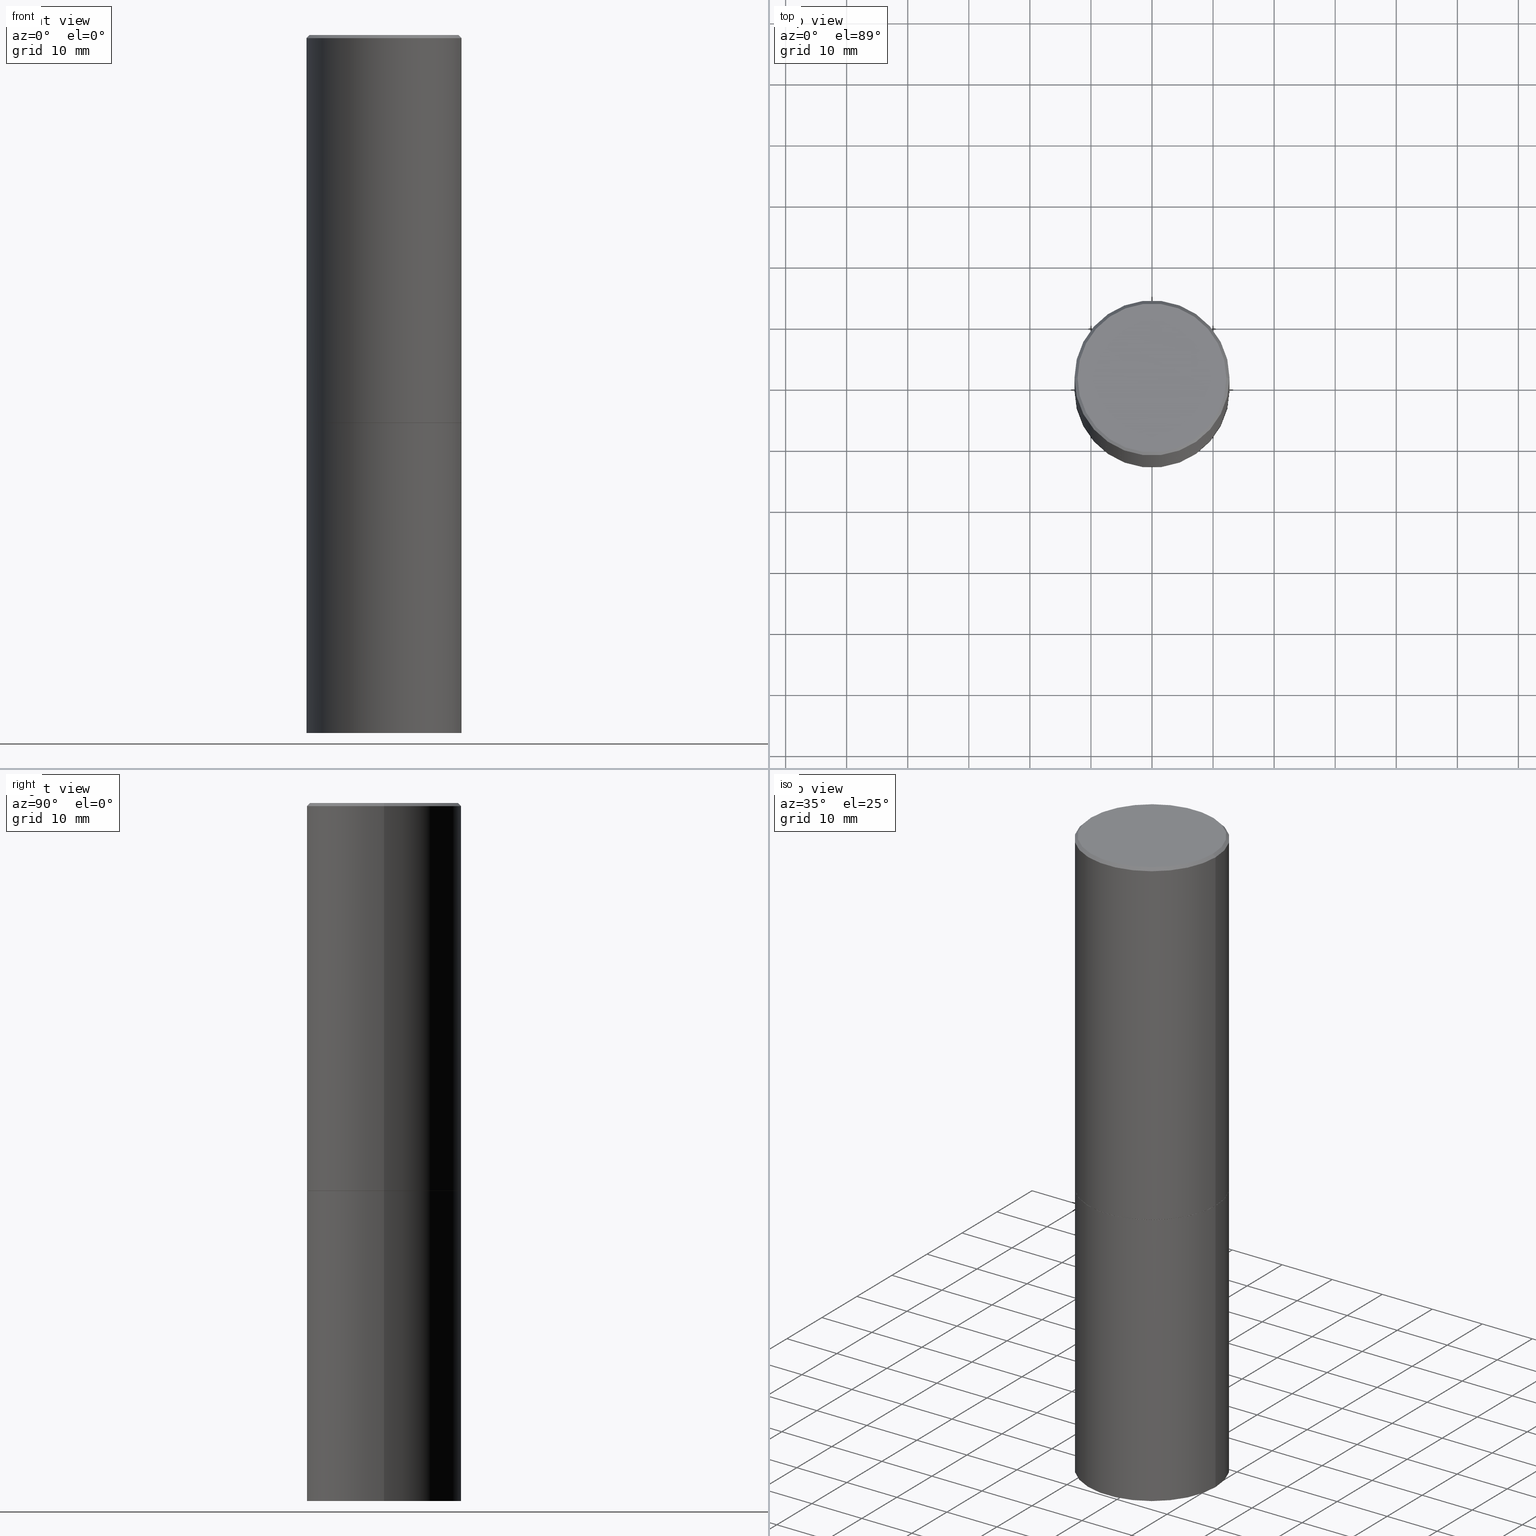
[diagram: canonical four-view strip — front | top / right | iso, engineering-drawing reading convention]
A machine part, canonical four-view strip (front | top / right | iso — engineering-drawing reading convention). The complete STEP part file that produces these views, byte-faithful:
ISO-10303-21;
HEADER;
FILE_DESCRIPTION (( 'STEP AP203' ),
    '1' );
FILE_NAME ('37302.STEP',
    '2024-02-27T21:13:08',
    ( '' ),
    ( '' ),
    'SwSTEP 2.0',
    'SolidWorks 2023',
    '' );
FILE_SCHEMA (( 'CONFIG_CONTROL_DESIGN' ));
ENDSEC;

DATA;
#1 = APPROVAL_STATUS ( 'not_yet_approved' ) ;
#2 = LINE ( 'NONE', #251, #241 ) ;
#3 = EDGE_CURVE ( 'NONE', #66, #364, #263, .T. ) ;
#4 = PERSON_AND_ORGANIZATION ( #172, #94 ) ;
#5 = PLANE ( 'NONE',  #203 ) ;
#6 = ORIENTED_EDGE ( 'NONE', *, *, #247, .T. ) ;
#7 = CARTESIAN_POINT ( 'NONE',  ( 3.351822085289404787E-15, 0.4799999999999995937, -1.669508273909557867E-15 ) ) ;
#8 = VECTOR ( 'NONE', #308, 39.37007874015748143 ) ;
#9 = ORIENTED_EDGE ( 'NONE', *, *, #125, .F. ) ;
#10 = ORIENTED_EDGE ( 'NONE', *, *, #343, .F. ) ;
#11 = LOCAL_TIME ( 16, 13, 8.000000000000000000, #177 ) ;
#12 = ORIENTED_EDGE ( 'NONE', *, *, #96, .T. ) ;
#13 = CIRCLE ( 'NONE', #146, 0.4989999999999999991 ) ;
#14 = ORIENTED_EDGE ( 'NONE', *, *, #183, .F. ) ;
#15 = CARTESIAN_POINT ( 'NONE',  ( -3.131554243005659264E-46, 4.471029511141341874E-32, 1.280553747030123384E-17 ) ) ;
#16 = VERTEX_POINT ( 'NONE', #142 ) ;
#17 = DIRECTION ( 'NONE',  ( 1.000000000000000000, -6.982962677686266711E-15, 0.000000000000000000 ) ) ;
#18 = PRODUCT_RELATED_PRODUCT_CATEGORY ( 'detail', '', ( #224 ) ) ;
#19 = CARTESIAN_POINT ( 'NONE',  ( 0.4999999999999996669, -3.500078625662626713E-15, -0.02000000000000009062 ) ) ;
#20 = FACE_OUTER_BOUND ( 'NONE', #144, .T. ) ;
#21 = EDGE_CURVE ( 'NONE', #16, #52, #97, .T. ) ;
#22 = CARTESIAN_POINT ( 'NONE',  ( 0.4989999999999999991, -1.221320172327331228E-14, -2.500000000000000000 ) ) ;
#23 = CC_DESIGN_PERSON_AND_ORGANIZATION_ASSIGNMENT ( #338, #71, ( #274 ) ) ;
#24 = ADVANCED_FACE ( 'NONE', ( #335 ), #307, .T. ) ;
#25 = CIRCLE ( 'NONE', #257, 0.5000000000000000000 ) ;
#26 = CARTESIAN_POINT ( 'NONE',  ( 6.111226546656657010E-29, -8.725211865769021935E-15, -2.499000000000000110 ) ) ;
#27 = DIRECTION ( 'NONE',  ( -2.445468806185136597E-29, 3.491481338843145583E-15, 1.000000000000000000 ) ) ;
#28 = DIRECTION ( 'NONE',  ( 1.000000000000000000, -6.982962677686266711E-15, 0.000000000000000000 ) ) ;
#29 = COORDINATED_UNIVERSAL_TIME_OFFSET ( 5, 0, .BEHIND. ) ;
#30 = DIRECTION ( 'NONE',  ( -2.445468806185136597E-29, 3.491481338843145583E-15, 1.000000000000000000 ) ) ;
#31 = CALENDAR_DATE ( 2024, 27, 2 ) ;
#32 = DIRECTION ( 'NONE',  ( -2.445468806185136597E-29, 3.491481338843145583E-15, 1.000000000000000000 ) ) ;
#33 = CC_DESIGN_PERSON_AND_ORGANIZATION_ASSIGNMENT ( #68, #170, ( #224 ) ) ;
#34 = FACE_OUTER_BOUND ( 'NONE', #332, .T. ) ;
#35 = VERTEX_POINT ( 'NONE', #47 ) ;
#36 = ORIENTED_EDGE ( 'NONE', *, *, #83, .F. ) ;
#37 = ORIENTED_EDGE ( 'NONE', *, *, #114, .T. ) ;
#38 = AXIS2_PLACEMENT_3D ( 'NONE', #75, #315, #152 ) ;
#39 = DIRECTION ( 'NONE',  ( 1.000000000000000000, 0.000000000000000000, 0.000000000000000000 ) ) ;
#40 = COORDINATED_UNIVERSAL_TIME_OFFSET ( 5, 0, .BEHIND. ) ;
#41 = DIRECTION ( 'NONE',  ( 1.000000000000000000, -6.982962677686266711E-15, 0.000000000000000000 ) ) ;
#42 = DIRECTION ( 'NONE',  ( -2.445468806185136597E-29, 3.491481338843145583E-15, 1.000000000000000000 ) ) ;
#43 = CALENDAR_DATE ( 2024, 27, 2 ) ;
#44 = AXIS2_PLACEMENT_3D ( 'NONE', #61, #206, #325 ) ;
#45 = AXIS2_PLACEMENT_3D ( 'NONE', #324, #32, #89 ) ;
#46 = DIRECTION ( 'NONE',  ( -2.438088387897960049E-29, 3.491481338843145188E-15, 1.000000000000000000 ) ) ;
#47 = CARTESIAN_POINT ( 'NONE',  ( -0.4799999999999995937, 3.386736898677836436E-15, 1.280553747027767124E-17 ) ) ;
#48 = EDGE_CURVE ( 'NONE', #238, #52, #148, .T. ) ;
#49 = LINE ( 'NONE', #228, #154 ) ;
#50 = CARTESIAN_POINT ( 'NONE',  ( 0.000000000000000000, 0.000000000000000000, 0.000000000000000000 ) ) ;
#51 = DATE_AND_TIME ( #344, #220 ) ;
#52 = VERTEX_POINT ( 'NONE', #244 ) ;
#53 = DIRECTION ( 'NONE',  ( -2.445468806185136597E-29, 3.491481338843145583E-15, 1.000000000000000000 ) ) ;
#54 = CONICAL_SURFACE ( 'NONE', #121, 0.4989999999999999991, 0.7853981633975507526 ) ;
#55 = FACE_OUTER_BOUND ( 'NONE', #366, .T. ) ;
#56 = APPROVAL_DATE_TIME ( #294, #80 ) ;
#57 = CARTESIAN_POINT ( 'NONE',  ( 4.890937612370295054E-31, -6.982962677686322424E-17, -0.02000000000000009062 ) ) ;
#58 = COORDINATED_UNIVERSAL_TIME_OFFSET ( 5, 0, .BEHIND. ) ;
#59 = VECTOR ( 'NONE', #174, 39.37007874015748143 ) ;
#60 = PLANE ( 'NONE',  #192 ) ;
#61 = CARTESIAN_POINT ( 'NONE',  ( 6.113672015462842613E-29, -8.728703347107864943E-15, -2.500000000000000000 ) ) ;
#62 = CC_DESIGN_PERSON_AND_ORGANIZATION_ASSIGNMENT ( #158, #287, ( #161 ) ) ;
#63 = FACE_OUTER_BOUND ( 'NONE', #123, .T. ) ;
#64 = ORIENTED_EDGE ( 'NONE', *, *, #100, .T. ) ;
#65 = PERSON_AND_ORGANIZATION ( #172, #94 ) ;
#66 = VERTEX_POINT ( 'NONE', #269 ) ;
#67 = CARTESIAN_POINT ( 'NONE',  ( -0.5000000000000000000, -8.448070674724411945E-16, -2.499000000000000110 ) ) ;
#68 = PERSON_AND_ORGANIZATION ( #172, #94 ) ;
#69 = CARTESIAN_POINT ( 'NONE',  ( 1.100460962783311469E-28, -1.571166602479415690E-14, -4.500000000000000000 ) ) ;
#70 = PERSON_AND_ORGANIZATION ( #172, #94 ) ;
#71 = PERSON_AND_ORGANIZATION_ROLE ( 'creator' ) ;
#72 = CARTESIAN_POINT ( 'NONE',  ( 6.113672015462842613E-29, -8.728703347107864943E-15, -2.500000000000000000 ) ) ;
#73 = AXIS2_PLACEMENT_3D ( 'NONE', #345, #53, #188 ) ;
#74 = CLOSED_SHELL ( 'NONE', ( #235, #260, #190, #331, #91, #299, #199, #306 ) ) ;
#75 = CARTESIAN_POINT ( 'NONE',  ( 0.000000000000000000, 0.000000000000000000, 0.000000000000000000 ) ) ;
#76 = DIRECTION ( 'NONE',  ( -2.445468806185136597E-29, 3.491481338843145583E-15, 1.000000000000000000 ) ) ;
#77 = CARTESIAN_POINT ( 'NONE',  ( 0.5000000000000000000, -1.221669320461215371E-14, -2.499000000000000110 ) ) ;
#78 = FACE_OUTER_BOUND ( 'NONE', #149, .T. ) ;
#79 = AXIS2_PLACEMENT_3D ( 'NONE', #88, #197, #326 ) ;
#80 = APPROVAL ( #323, 'UNSPECIFIED' ) ;
#81 = CC_DESIGN_DATE_AND_TIME_ASSIGNMENT ( #219, #334, ( #274 ) ) ;
#82 = ORIENTED_EDGE ( 'NONE', *, *, #247, .F. ) ;
#83 = EDGE_CURVE ( 'NONE', #127, #93, #103, .T. ) ;
#84 = CALENDAR_DATE ( 2024, 27, 2 ) ;
#85 = CARTESIAN_POINT ( 'NONE',  ( 4.890937612370295054E-31, -6.982962677686322424E-17, -0.02000000000000009062 ) ) ;
#86 = FACE_OUTER_BOUND ( 'NONE', #301, .T. ) ;
#87 =( NAMED_UNIT ( * ) PLANE_ANGLE_UNIT ( ) SI_UNIT ( $, .RADIAN. ) );
#88 = CARTESIAN_POINT ( 'NONE',  ( 0.000000000000000000, 0.000000000000000000, 0.000000000000000000 ) ) ;
#89 = DIRECTION ( 'NONE',  ( 1.000000000000000000, -6.982962677686265133E-15, 0.000000000000000000 ) ) ;
#90 = EDGE_LOOP ( 'NONE', ( #358, #267 ) ) ;
#91 = ADVANCED_FACE ( 'NONE', ( #20 ), #129, .T. ) ;
#92 = AXIS2_PLACEMENT_3D ( 'NONE', #340, #316, #278 ) ;
#93 = VERTEX_POINT ( 'NONE', #77 ) ;
#94 = ORGANIZATION ( 'UNSPECIFIED', 'UNSPECIFIED', '' ) ;
#95 = DIRECTION ( 'NONE',  ( 1.000000000000000000, -6.982962677686266711E-15, 4.876036955247133327E-29 ) ) ;
#96 = EDGE_CURVE ( 'NONE', #164, #35, #180, .T. ) ;
#97 = CIRCLE ( 'NONE', #333, 0.5000000000000000000 ) ;
#98 = CARTESIAN_POINT ( 'NONE',  ( 3.491481338843194098E-15, 0.4999999999999912292, -2.500000000000001776 ) ) ;
#99 = ORIENTED_EDGE ( 'NONE', *, *, #21, .T. ) ;
#100 = EDGE_CURVE ( 'NONE', #364, #66, #102, .T. ) ;
#101 = DIRECTION ( 'NONE',  ( -1.000000000000000000, 6.982962677686265922E-15, -4.876176775795935793E-29 ) ) ;
#102 = CIRCLE ( 'NONE', #361, 0.4999999999999996669 ) ;
#103 = LINE ( 'NONE', #22, #202 ) ;
#104 = LINE ( 'NONE', #182, #193 ) ;
#105 = CYLINDRICAL_SURFACE ( 'NONE', #349, 0.4999999999999998335 ) ;
#106 = SECURITY_CLASSIFICATION ( '', '', #227 ) ;
#107 = CALENDAR_DATE ( 2024, 27, 2 ) ;
#108 = AXIS2_PLACEMENT_3D ( 'NONE', #26, #133, #250 ) ;
#109 = CC_DESIGN_SECURITY_CLASSIFICATION ( #106, ( #161 ) ) ;
#110 =( LENGTH_UNIT ( ) NAMED_UNIT ( * ) SI_UNIT ( $, .METRE. ) );
#111 = PERSON_AND_ORGANIZATION_ROLE ( 'design_supplier' ) ;
#112 = APPLICATION_CONTEXT ( 'configuration controlled 3d designs of mechanical parts and assemblies' ) ;
#113 = CARTESIAN_POINT ( 'NONE',  ( 3.491481338843243007E-15, 0.4999999999999842903, -4.500000000000001776 ) ) ;
#114 = EDGE_CURVE ( 'NONE', #330, #127, #141, .T. ) ;
#115 = DIRECTION ( 'NONE',  ( 2.438088387897960049E-29, -3.491481338843145188E-15, -1.000000000000000000 ) ) ;
#116 = VECTOR ( 'NONE', #196, 39.37007874015748143 ) ;
#117 = FACE_OUTER_BOUND ( 'NONE', #234, .T. ) ;
#118 = ORIENTED_EDGE ( 'NONE', *, *, #176, .T. ) ;
#119 = ORIENTED_EDGE ( 'NONE', *, *, #155, .F. ) ;
#120 = CIRCLE ( 'NONE', #45, 0.5000000000000000000 ) ;
#121 = AXIS2_PLACEMENT_3D ( 'NONE', #245, #76, #282 ) ;
#122 = ORIENTED_EDGE ( 'NONE', *, *, #337, .F. ) ;
#123 = EDGE_LOOP ( 'NONE', ( #296, #232, #354, #122 ) ) ;
#124 = APPLICATION_PROTOCOL_DEFINITION ( 'international standard', 'config_control_design', 1994, #112 ) ;
#125 = EDGE_CURVE ( 'NONE', #93, #66, #2, .T. ) ;
#126 = DIRECTION ( 'NONE',  ( -2.445468806185136597E-29, 3.491481338843145583E-15, 1.000000000000000000 ) ) ;
#127 = VERTEX_POINT ( 'NONE', #347 ) ;
#128 = DIRECTION ( 'NONE',  ( -2.445468806185136597E-29, 3.491481338843145583E-15, 1.000000000000000000 ) ) ;
#129 = CYLINDRICAL_SURFACE ( 'NONE', #38, 0.4999999999999998335 ) ;
#130 = ORIENTED_EDGE ( 'NONE', *, *, #285, .T. ) ;
#131 = LINE ( 'NONE', #19, #166 ) ;
#132 = AXIS2_PLACEMENT_3D ( 'NONE', #139, #286, #259 ) ;
#133 = DIRECTION ( 'NONE',  ( -2.445468806185136597E-29, 3.491481338843145583E-15, 1.000000000000000000 ) ) ;
#134 = EDGE_LOOP ( 'NONE', ( #130, #304, #198, #119 ) ) ;
#135 =( GEOMETRIC_REPRESENTATION_CONTEXT ( 3 ) GLOBAL_UNCERTAINTY_ASSIGNED_CONTEXT ( ( #353 ) ) GLOBAL_UNIT_ASSIGNED_CONTEXT ( ( #249, #87, #156 ) ) REPRESENTATION_CONTEXT ( 'NONE', 'WORKASPACE' ) );
#136 = DIRECTION ( 'NONE',  ( -2.445468806185136597E-29, 3.491481338843145583E-15, 1.000000000000000000 ) ) ;
#137 = APPROVAL_DATE_TIME ( #258, #186 ) ;
#138 = CARTESIAN_POINT ( 'NONE',  ( 6.113672015462842613E-29, -8.728703347107864943E-15, -2.500000000000000000 ) ) ;
#139 = CARTESIAN_POINT ( 'NONE',  ( 1.100460962783311469E-28, -1.571166602479415690E-14, -4.500000000000000000 ) ) ;
#140 = CC_DESIGN_PERSON_AND_ORGANIZATION_ASSIGNMENT ( #70, #111, ( #161 ) ) ;
#141 = CIRCLE ( 'NONE', #276, 0.4989999999999999991 ) ;
#142 = CARTESIAN_POINT ( 'NONE',  ( 0.5000000000000000000, -1.222018468595099830E-14, -2.500000000000000000 ) ) ;
#143 = ORIENTED_EDGE ( 'NONE', *, *, #100, .F. ) ;
#144 = EDGE_LOOP ( 'NONE', ( #147, #226, #293, #143 ) ) ;
#145 = CARTESIAN_POINT ( 'NONE',  ( -3.131554243005659264E-46, 4.471029511141341874E-32, 1.280553747030123384E-17 ) ) ;
#146 = AXIS2_PLACEMENT_3D ( 'NONE', #279, #319, #362 ) ;
#147 = ORIENTED_EDGE ( 'NONE', *, *, #255, .F. ) ;
#148 = LINE ( 'NONE', #216, #59 ) ;
#149 = EDGE_LOOP ( 'NONE', ( #82, #168 ) ) ;
#150 = CARTESIAN_POINT ( 'NONE',  ( -0.5000000000000000000, -8.667471007150509990E-15, -4.500000000000000000 ) ) ;
#151 = CC_DESIGN_APPROVAL ( #181, ( #161 ) ) ;
#152 = DIRECTION ( 'NONE',  ( 1.000000000000000000, -6.982962677686267499E-15, 4.876176775795936353E-29 ) ) ;
#153 = PLANE ( 'NONE',  #312 ) ;
#154 = VECTOR ( 'NONE', #321, 39.37007874015748143 ) ;
#155 = EDGE_CURVE ( 'NONE', #210, #16, #49, .T. ) ;
#156 =( NAMED_UNIT ( * ) SI_UNIT ( $, .STERADIAN. ) SOLID_ANGLE_UNIT ( ) );
#157 = DIRECTION ( 'NONE',  ( -1.000000000000000000, 6.982962677686265922E-15, -4.876176775795935793E-29 ) ) ;
#158 = PERSON_AND_ORGANIZATION ( #172, #94 ) ;
#159 = EDGE_CURVE ( 'NONE', #93, #195, #297, .T. ) ;
#160 = DIRECTION ( 'NONE',  ( -1.000000000000000000, 6.982962677686265922E-15, -4.876176775795935793E-29 ) ) ;
#161 = PRODUCT_DEFINITION_FORMATION_WITH_SPECIFIED_SOURCE ( 'ANY', '', #224, .NOT_KNOWN. ) ;
#162 = CLOSED_SHELL ( 'NONE', ( #24, #313, #352, #292 ) ) ;
#163 = CC_DESIGN_DATE_AND_TIME_ASSIGNMENT ( #243, #309, ( #106 ) ) ;
#164 = VERTEX_POINT ( 'NONE', #329 ) ;
#165 = APPROVAL_ROLE ( '' ) ;
#166 = VECTOR ( 'NONE', #342, 39.37007874015748143 ) ;
#167 = ORIENTED_EDGE ( 'NONE', *, *, #337, .T. ) ;
#168 = ORIENTED_EDGE ( 'NONE', *, *, #114, .F. ) ;
#169 = ORIENTED_EDGE ( 'NONE', *, *, #255, .T. ) ;
#170 = PERSON_AND_ORGANIZATION_ROLE ( 'design_owner' ) ;
#171 = DIRECTION ( 'NONE',  ( 1.000000000000000000, -6.982962677686269077E-15, 0.000000000000000000 ) ) ;
#172 = PERSON ( 'UNSPECIFIED', 'UNSPECIFIED', 'UNSPECIFIED', ('UNSPECIFIED'), ('UNSPECIFIED'), ('UNSPECIFIED') ) ;
#173 = DIRECTION ( 'NONE',  ( -2.445468806185136597E-29, 3.491481338843145583E-15, 1.000000000000000000 ) ) ;
#174 = DIRECTION ( 'NONE',  ( -2.445468806185136877E-29, 3.491481338843145188E-15, 1.000000000000000000 ) ) ;
#175 = MECHANICAL_CONTEXT ( 'NONE', #112, 'mechanical' ) ;
#176 = EDGE_CURVE ( 'NONE', #52, #16, #215, .T. ) ;
#177 = COORDINATED_UNIVERSAL_TIME_OFFSET ( 5, 0, .BEHIND. ) ;
#178 = APPROVAL_PERSON_ORGANIZATION ( #357, #80, #165 ) ;
#179 = CARTESIAN_POINT ( 'NONE',  ( 6.113672015462842613E-29, -8.728703347107864943E-15, -2.500000000000000000 ) ) ;
#180 = CIRCLE ( 'NONE', #222, 0.4799999999999995937 ) ;
#181 = APPROVAL ( #189, 'UNSPECIFIED' ) ;
#182 = CARTESIAN_POINT ( 'NONE',  ( -0.4999999999999998335, 3.552713678800499746E-15, -2.459467545127452330E-29 ) ) ;
#183 = EDGE_CURVE ( 'NONE', #35, #164, #256, .T. ) ;
#184 = ORIENTED_EDGE ( 'NONE', *, *, #155, .T. ) ;
#185 = DIRECTION ( 'NONE',  ( -2.445468806185136877E-29, 3.491481338843145188E-15, 1.000000000000000000 ) ) ;
#186 = APPROVAL ( #1, 'UNSPECIFIED' ) ;
#187 = APPROVAL_ROLE ( '' ) ;
#188 = DIRECTION ( 'NONE',  ( 1.000000000000000000, -6.982962677686266711E-15, 0.000000000000000000 ) ) ;
#189 = APPROVAL_STATUS ( 'not_yet_approved' ) ;
#190 = ADVANCED_FACE ( 'NONE', ( #63 ), #303, .T. ) ;
#191 = ORIENTED_EDGE ( 'NONE', *, *, #3, .F. ) ;
#192 = AXIS2_PLACEMENT_3D ( 'NONE', #98, #314, #101 ) ;
#193 = VECTOR ( 'NONE', #185, 39.37007874015748143 ) ;
#194 = DIRECTION ( 'NONE',  ( -2.445468806185136877E-29, 3.491481338843145188E-15, 1.000000000000000000 ) ) ;
#195 = VERTEX_POINT ( 'NONE', #67 ) ;
#196 = DIRECTION ( 'NONE',  ( -0.7071067811865467956, 2.468850131082249172E-15, -0.7071067811865482389 ) ) ;
#197 = DIRECTION ( 'NONE',  ( -2.445468806185136597E-29, 3.491481338843145583E-15, 1.000000000000000000 ) ) ;
#198 = ORIENTED_EDGE ( 'NONE', *, *, #21, .F. ) ;
#199 = ADVANCED_FACE ( 'NONE', ( #78 ), #153, .F. ) ;
#200 = DIRECTION ( 'NONE',  ( -1.000000000000000000, 6.982962677686266711E-15, 0.000000000000000000 ) ) ;
#201 = ORIENTED_EDGE ( 'NONE', *, *, #83, .T. ) ;
#202 = VECTOR ( 'NONE', #277, 39.37007874015748143 ) ;
#203 = AXIS2_PLACEMENT_3D ( 'NONE', #7, #115, #157 ) ;
#204 = APPLICATION_PROTOCOL_DEFINITION ( 'international standard', 'config_control_design', 1994, #265 ) ;
#205 = EDGE_LOOP ( 'NONE', ( #264, #302, #184, #270 ) ) ;
#206 = DIRECTION ( 'NONE',  ( -2.445468806185136597E-29, 3.491481338843145583E-15, 1.000000000000000000 ) ) ;
#207 = EDGE_CURVE ( 'NONE', #164, #66, #131, .T. ) ;
#208 = EDGE_LOOP ( 'NONE', ( #6, #214, #281, #36 ) ) ;
#209 = DIRECTION ( 'NONE',  ( -1.000000000000000000, 6.982962677686266711E-15, 0.000000000000000000 ) ) ;
#210 = VERTEX_POINT ( 'NONE', #246 ) ;
#211 = CARTESIAN_POINT ( 'NONE',  ( 4.890937612370295054E-31, -6.982962677686322424E-17, -0.02000000000000009062 ) ) ;
#212 = CIRCLE ( 'NONE', #132, 0.5000000000000000000 ) ;
#213 = PRODUCT_DEFINITION_SHAPE ( 'NONE', 'NONE',  #274 ) ;
#214 = ORIENTED_EDGE ( 'NONE', *, *, #223, .T. ) ;
#215 = CIRCLE ( 'NONE', #44, 0.5000000000000000000 ) ;
#216 = CARTESIAN_POINT ( 'NONE',  ( -0.5000000000000000000, 3.552713678800500929E-15, -2.459467545127452891E-29 ) ) ;
#217 = ORIENTED_EDGE ( 'NONE', *, *, #183, .T. ) ;
#218 = DIRECTION ( 'NONE',  ( 1.000000000000000000, -6.982962677686267499E-15, 4.876176775795936353E-29 ) ) ;
#219 = DATE_AND_TIME ( #84, #11 ) ;
#220 = LOCAL_TIME ( 16, 13, 8.000000000000000000, #322 ) ;
#221 = CYLINDRICAL_SURFACE ( 'NONE', #79, 0.5000000000000000000 ) ;
#222 = AXIS2_PLACEMENT_3D ( 'NONE', #15, #126, #95 ) ;
#223 = EDGE_CURVE ( 'NONE', #330, #195, #248, .T. ) ;
#224 = PRODUCT ( '37302', '37302', '', ( #175 ) ) ;
#225 = PERSON_AND_ORGANIZATION ( #172, #94 ) ;
#226 = ORIENTED_EDGE ( 'NONE', *, *, #343, .T. ) ;
#227 = SECURITY_CLASSIFICATION_LEVEL ( 'unclassified' ) ;
#228 = CARTESIAN_POINT ( 'NONE',  ( 0.5000000000000000000, -3.491481338843133355E-15, 2.438088387897967896E-29 ) ) ;
#229 = CARTESIAN_POINT ( 'NONE',  ( -0.4999999999999996669, 3.421651712066267691E-15, -0.02000000000000009062 ) ) ;
#230 = DIRECTION ( 'NONE',  ( 1.000000000000000000, -6.982962677686266711E-15, 4.876036955247133327E-29 ) ) ;
#231 = MANIFOLD_SOLID_BREP ( 'Body-Move/Copy2[1]', #162 ) ;
#232 = ORIENTED_EDGE ( 'NONE', *, *, #207, .T. ) ;
#233 = DIRECTION ( 'NONE',  ( 2.445468806185136597E-29, -3.491481338843145583E-15, -1.000000000000000000 ) ) ;
#234 = EDGE_LOOP ( 'NONE', ( #341, #14, #167, #64 ) ) ;
#235 = ADVANCED_FACE ( 'NONE', ( #242 ), #54, .T. ) ;
#236 = LOCAL_TIME ( 16, 13, 8.000000000000000000, #29 ) ;
#237 = DIRECTION ( 'NONE',  ( -2.445468806185136597E-29, 3.491481338843145583E-15, 1.000000000000000000 ) ) ;
#238 = VERTEX_POINT ( 'NONE', #150 ) ;
#239 = ORIENTED_EDGE ( 'NONE', *, *, #223, .F. ) ;
#240 = PERSON_AND_ORGANIZATION_ROLE ( 'classification_officer' ) ;
#241 = VECTOR ( 'NONE', #194, 39.37007874015748143 ) ;
#242 = FACE_OUTER_BOUND ( 'NONE', #208, .T. ) ;
#243 = DATE_AND_TIME ( #43, #295 ) ;
#244 = CARTESIAN_POINT ( 'NONE',  ( -0.5000000000000000000, -8.667471007150509990E-15, -2.500000000000000000 ) ) ;
#245 = CARTESIAN_POINT ( 'NONE',  ( 6.113672015462842613E-29, -8.728703347107864943E-15, -2.500000000000000000 ) ) ;
#246 = CARTESIAN_POINT ( 'NONE',  ( 0.5000000000000000000, -1.920314736363729025E-14, -4.500000000000000000 ) ) ;
#247 = EDGE_CURVE ( 'NONE', #127, #330, #13, .T. ) ;
#248 = LINE ( 'NONE', #359, #8 ) ;
#249 =( CONVERSION_BASED_UNIT ( 'INCH', #348 ) LENGTH_UNIT ( ) NAMED_UNIT ( #350 ) );
#250 = DIRECTION ( 'NONE',  ( 1.000000000000000000, -6.982962677686265133E-15, 0.000000000000000000 ) ) ;
#251 = CARTESIAN_POINT ( 'NONE',  ( 0.4999999999999998335, -3.491481338843132566E-15, 2.438088387897967336E-29 ) ) ;
#252 = DIRECTION ( 'NONE',  ( 2.438088387897960049E-29, -3.491481338843145188E-15, -1.000000000000000000 ) ) ;
#253 = CONICAL_SURFACE ( 'NONE', #73, 0.4989999999999999991, 0.7853981633975507526 ) ;
#254 = FACE_OUTER_BOUND ( 'NONE', #90, .T. ) ;
#255 = EDGE_CURVE ( 'NONE', #195, #364, #104, .T. ) ;
#256 = CIRCLE ( 'NONE', #346, 0.4799999999999995937 ) ;
#257 = AXIS2_PLACEMENT_3D ( 'NONE', #69, #173, #283 ) ;
#258 = DATE_AND_TIME ( #107, #236 ) ;
#259 = DIRECTION ( 'NONE',  ( 1.000000000000000000, -6.982962677686266711E-15, 0.000000000000000000 ) ) ;
#260 = ADVANCED_FACE ( 'NONE', ( #317 ), #105, .T. ) ;
#261 = FACE_OUTER_BOUND ( 'NONE', #205, .T. ) ;
#262 = SHAPE_DEFINITION_REPRESENTATION ( #213, #271 ) ;
#263 = CIRCLE ( 'NONE', #290, 0.4999999999999996669 ) ;
#264 = ORIENTED_EDGE ( 'NONE', *, *, #48, .F. ) ;
#265 = APPLICATION_CONTEXT ( 'configuration controlled 3d designs of mechanical parts and assemblies' ) ;
#266 = CARTESIAN_POINT ( 'NONE',  ( 4.890937612370295054E-31, -6.982962677686322424E-17, -0.02000000000000009062 ) ) ;
#267 = ORIENTED_EDGE ( 'NONE', *, *, #363, .F. ) ;
#268 = DIRECTION ( 'NONE',  ( 0.000000000000000000, 0.000000000000000000, 1.000000000000000000 ) ) ;
#269 = CARTESIAN_POINT ( 'NONE',  ( 0.4999999999999996669, -3.500078625662626713E-15, -0.02000000000000009062 ) ) ;
#270 = ORIENTED_EDGE ( 'NONE', *, *, #176, .F. ) ;
#271 = ADVANCED_BREP_SHAPE_REPRESENTATION ( '37302', ( #231, #360, #339 ), #135 ) ;
#272 = DIRECTION ( 'NONE',  ( 2.445468806185136597E-29, -3.491481338843145583E-15, -1.000000000000000000 ) ) ;
#273 = LINE ( 'NONE', #229, #116 ) ;
#274 = PRODUCT_DEFINITION ( 'UNKNOWN', '', #161, #298 ) ;
#275 = APPROVAL_PERSON_ORGANIZATION ( #225, #186, #187 ) ;
#276 = AXIS2_PLACEMENT_3D ( 'NONE', #138, #136, #28 ) ;
#277 = DIRECTION ( 'NONE',  ( 0.7071067811866199593, -2.468850131083015945E-15, 0.7071067811864750752 ) ) ;
#278 = DIRECTION ( 'NONE',  ( 1.000000000000000000, -6.982962677686266711E-15, 4.876176775795935793E-29 ) ) ;
#279 = CARTESIAN_POINT ( 'NONE',  ( 6.113672015462842613E-29, -8.728703347107864943E-15, -2.500000000000000000 ) ) ;
#280 = AXIS2_PLACEMENT_3D ( 'NONE', #266, #233, #200 ) ;
#281 = ORIENTED_EDGE ( 'NONE', *, *, #159, .F. ) ;
#282 = DIRECTION ( 'NONE',  ( 1.000000000000000000, -6.982962677686266711E-15, 0.000000000000000000 ) ) ;
#283 = DIRECTION ( 'NONE',  ( 1.000000000000000000, -6.982962677686266711E-15, 0.000000000000000000 ) ) ;
#284 = APPROVAL_DATE_TIME ( #51, #181 ) ;
#285 = EDGE_CURVE ( 'NONE', #210, #238, #212, .T. ) ;
#286 = DIRECTION ( 'NONE',  ( -2.445468806185136597E-29, 3.491481338843145583E-15, 1.000000000000000000 ) ) ;
#287 = PERSON_AND_ORGANIZATION_ROLE ( 'creator' ) ;
#288 = AXIS2_PLACEMENT_3D ( 'NONE', #113, #252, #160 ) ;
#289 = CARTESIAN_POINT ( 'NONE',  ( -0.4989999999999999991, -5.177796641316743408E-15, -2.500000000000000000 ) ) ;
#290 = AXIS2_PLACEMENT_3D ( 'NONE', #85, #30, #41 ) ;
#291 = PLANE ( 'NONE',  #288 ) ;
#292 = ADVANCED_FACE ( 'NONE', ( #261 ), #221, .T. ) ;
#293 = ORIENTED_EDGE ( 'NONE', *, *, #125, .T. ) ;
#294 = DATE_AND_TIME ( #31, #318 ) ;
#295 = LOCAL_TIME ( 16, 13, 8.000000000000000000, #40 ) ;
#296 = ORIENTED_EDGE ( 'NONE', *, *, #96, .F. ) ;
#297 = CIRCLE ( 'NONE', #108, 0.5000000000000000000 ) ;
#298 = DESIGN_CONTEXT ( 'detailed design', #265, 'design' ) ;
#299 = ADVANCED_FACE ( 'NONE', ( #86 ), #253, .T. ) ;
#300 = EDGE_LOOP ( 'NONE', ( #328, #169, #191, #9 ) ) ;
#301 = EDGE_LOOP ( 'NONE', ( #239, #37, #201, #10 ) ) ;
#302 = ORIENTED_EDGE ( 'NONE', *, *, #363, .T. ) ;
#303 = CONICAL_SURFACE ( 'NONE', #320, 0.4999999999999996669, 0.7853981633974472798 ) ;
#304 = ORIENTED_EDGE ( 'NONE', *, *, #48, .T. ) ;
#305 = CARTESIAN_POINT ( 'NONE',  ( 0.000000000000000000, 0.000000000000000000, 0.000000000000000000 ) ) ;
#306 = ADVANCED_FACE ( 'NONE', ( #55 ), #5, .F. ) ;
#307 = CYLINDRICAL_SURFACE ( 'NONE', #92, 0.5000000000000000000 ) ;
#308 = DIRECTION ( 'NONE',  ( -0.7071067811866199593, 7.493145998870616062E-15, 0.7071067811864750752 ) ) ;
#309 = DATE_TIME_ROLE ( 'classification_date' ) ;
#310 = CONICAL_SURFACE ( 'NONE', #280, 0.4999999999999996669, 0.7853981633974472798 ) ;
#311 = APPROVAL_ROLE ( '' ) ;
#312 = AXIS2_PLACEMENT_3D ( 'NONE', #179, #46, #336 ) ;
#313 = ADVANCED_FACE ( 'NONE', ( #254 ), #291, .T. ) ;
#314 = DIRECTION ( 'NONE',  ( 2.438088387897960049E-29, -3.491481338843145188E-15, -1.000000000000000000 ) ) ;
#315 = DIRECTION ( 'NONE',  ( -2.445468806185136597E-29, 3.491481338843145583E-15, 1.000000000000000000 ) ) ;
#316 = DIRECTION ( 'NONE',  ( -2.445468806185136597E-29, 3.491481338843145583E-15, 1.000000000000000000 ) ) ;
#317 = FACE_OUTER_BOUND ( 'NONE', #300, .T. ) ;
#318 = LOCAL_TIME ( 16, 13, 8.000000000000000000, #58 ) ;
#319 = DIRECTION ( 'NONE',  ( -2.445468806185136597E-29, 3.491481338843145583E-15, 1.000000000000000000 ) ) ;
#320 = AXIS2_PLACEMENT_3D ( 'NONE', #57, #272, #209 ) ;
#321 = DIRECTION ( 'NONE',  ( -2.445468806185136877E-29, 3.491481338843145188E-15, 1.000000000000000000 ) ) ;
#322 = COORDINATED_UNIVERSAL_TIME_OFFSET ( 5, 0, .BEHIND. ) ;
#323 = APPROVAL_STATUS ( 'not_yet_approved' ) ;
#324 = CARTESIAN_POINT ( 'NONE',  ( 6.111226546656657010E-29, -8.725211865769021935E-15, -2.499000000000000110 ) ) ;
#325 = DIRECTION ( 'NONE',  ( 1.000000000000000000, -6.982962677686269077E-15, 0.000000000000000000 ) ) ;
#326 = DIRECTION ( 'NONE',  ( 1.000000000000000000, -6.982962677686266711E-15, 4.876176775795935793E-29 ) ) ;
#327 = APPROVAL_PERSON_ORGANIZATION ( #4, #181, #311 ) ;
#328 = ORIENTED_EDGE ( 'NONE', *, *, #159, .T. ) ;
#329 = CARTESIAN_POINT ( 'NONE',  ( 0.4799999999999995937, -3.396558832296479732E-15, 1.280553747032483033E-17 ) ) ;
#330 = VERTEX_POINT ( 'NONE', #289 ) ;
#331 = ADVANCED_FACE ( 'NONE', ( #117 ), #310, .T. ) ;
#332 = EDGE_LOOP ( 'NONE', ( #99, #118 ) ) ;
#333 = AXIS2_PLACEMENT_3D ( 'NONE', #72, #128, #171 ) ;
#334 = DATE_TIME_ROLE ( 'creation_date' ) ;
#335 = FACE_OUTER_BOUND ( 'NONE', #134, .T. ) ;
#336 = DIRECTION ( 'NONE',  ( 1.000000000000000000, -6.982962677686265922E-15, 4.876176775795935793E-29 ) ) ;
#337 = EDGE_CURVE ( 'NONE', #35, #364, #273, .T. ) ;
#338 = PERSON_AND_ORGANIZATION ( #172, #94 ) ;
#339 = AXIS2_PLACEMENT_3D ( 'NONE', #305, #268, #39 ) ;
#340 = CARTESIAN_POINT ( 'NONE',  ( 0.000000000000000000, 0.000000000000000000, 0.000000000000000000 ) ) ;
#341 = ORIENTED_EDGE ( 'NONE', *, *, #207, .F. ) ;
#342 = DIRECTION ( 'NONE',  ( 0.7071067811865467956, -7.319954787623254468E-15, -0.7071067811865482389 ) ) ;
#343 = EDGE_CURVE ( 'NONE', #195, #93, #120, .T. ) ;
#344 = CALENDAR_DATE ( 2024, 27, 2 ) ;
#345 = CARTESIAN_POINT ( 'NONE',  ( 6.113672015462842613E-29, -8.728703347107864943E-15, -2.500000000000000000 ) ) ;
#346 = AXIS2_PLACEMENT_3D ( 'NONE', #145, #237, #230 ) ;
#347 = CARTESIAN_POINT ( 'NONE',  ( 0.4989999999999999991, -1.221320172327331228E-14, -2.500000000000000000 ) ) ;
#348 = LENGTH_MEASURE_WITH_UNIT ( LENGTH_MEASURE( 0.02539999999999999897 ), #110 );
#349 = AXIS2_PLACEMENT_3D ( 'NONE', #50, #27, #218 ) ;
#350 = DIMENSIONAL_EXPONENTS ( 1.000000000000000000, 0.000000000000000000, 0.000000000000000000, 0.000000000000000000, 0.000000000000000000, 0.000000000000000000, 0.000000000000000000 ) ;
#351 = CC_DESIGN_APPROVAL ( #186, ( #274 ) ) ;
#352 = ADVANCED_FACE ( 'NONE', ( #34 ), #60, .F. ) ;
#353 = UNCERTAINTY_MEASURE_WITH_UNIT (LENGTH_MEASURE( 1.000000000000000082E-05 ), #249, 'distance_accuracy_value', 'NONE');
#354 = ORIENTED_EDGE ( 'NONE', *, *, #3, .T. ) ;
#355 = CC_DESIGN_APPROVAL ( #80, ( #106 ) ) ;
#356 = CC_DESIGN_PERSON_AND_ORGANIZATION_ASSIGNMENT ( #65, #240, ( #106 ) ) ;
#357 = PERSON_AND_ORGANIZATION ( #172, #94 ) ;
#358 = ORIENTED_EDGE ( 'NONE', *, *, #285, .F. ) ;
#359 = CARTESIAN_POINT ( 'NONE',  ( -0.4989999999999999991, -5.183095095664965021E-15, -2.500000000000000000 ) ) ;
#360 = MANIFOLD_SOLID_BREP ( 'Body-Move/Copy2[2]', #74 ) ;
#361 = AXIS2_PLACEMENT_3D ( 'NONE', #211, #42, #17 ) ;
#362 = DIRECTION ( 'NONE',  ( 1.000000000000000000, -6.982962677686266711E-15, 0.000000000000000000 ) ) ;
#363 = EDGE_CURVE ( 'NONE', #238, #210, #25, .T. ) ;
#364 = VERTEX_POINT ( 'NONE', #365 ) ;
#365 = CARTESIAN_POINT ( 'NONE',  ( -0.4999999999999996669, 3.421651712066267691E-15, -0.02000000000000009062 ) ) ;
#366 = EDGE_LOOP ( 'NONE', ( #217, #12 ) ) ;
ENDSEC;
END-ISO-10303-21;
